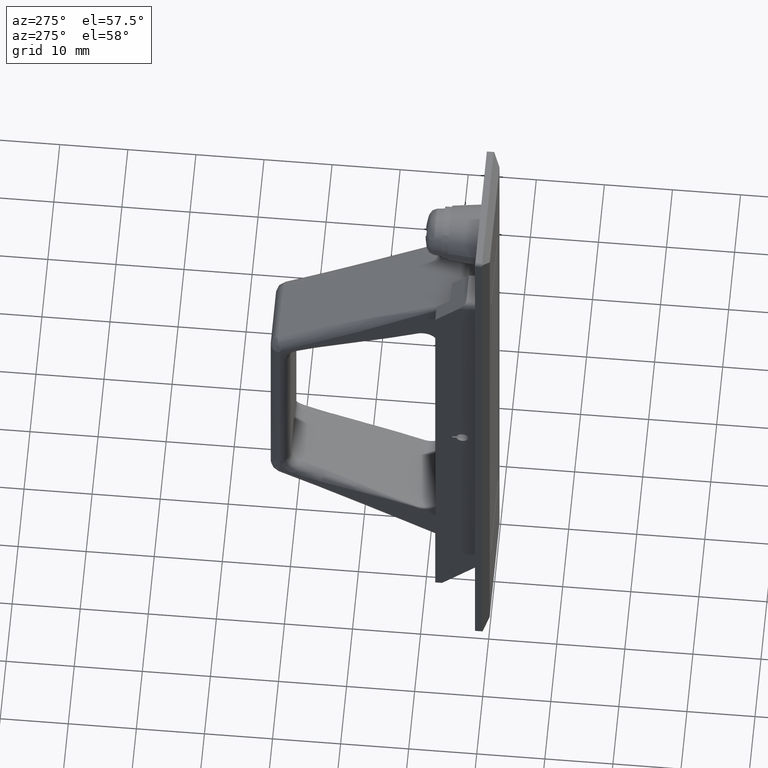
[diagram: clean part render]
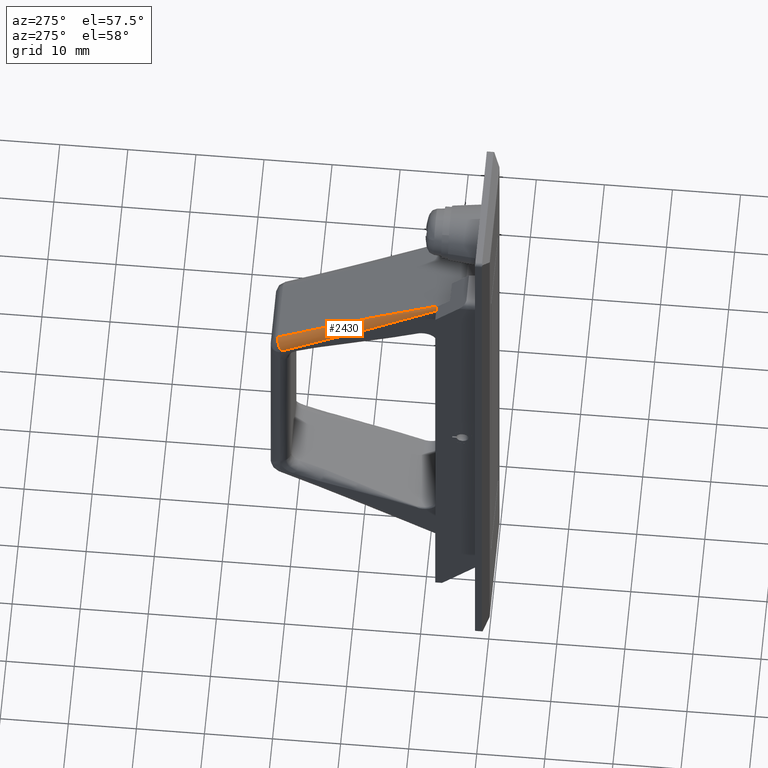
[diagram: same view with one face highlighted and labeled with its STEP entity id]
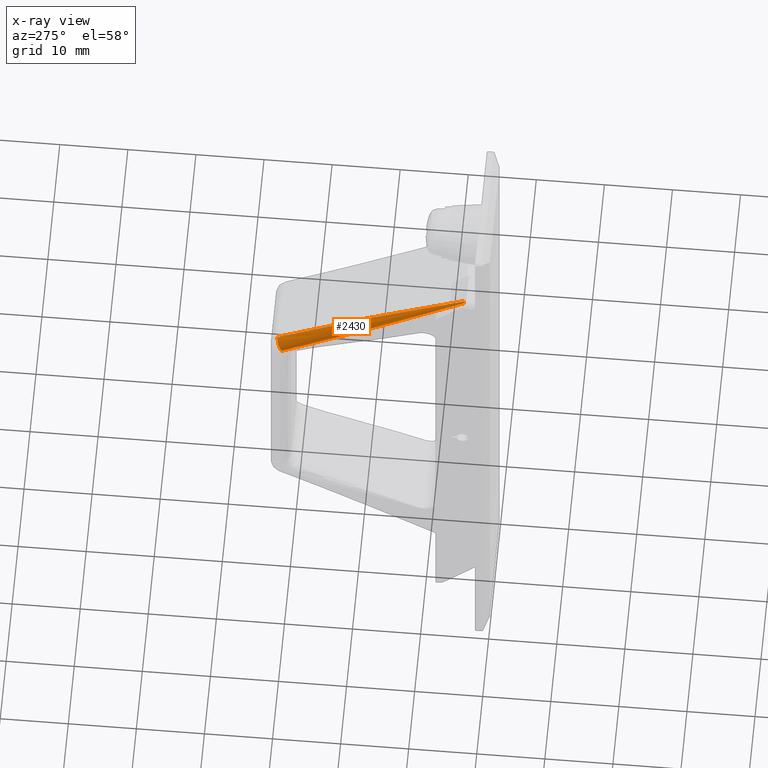
[diagram: x-ray of the same camera — body ghosted, the highlighted face saturated]
A machine part, auxiliary view. The second image highlights one B-rep face of the part: STEP entity #2430.
The next image is the same camera in x-ray: the body ghosted, the highlighted face saturated — about 0% of this face is hidden behind the body in this view.
In plain terms, the highlighted face is a freeform B-spline surface patch.
Its self-contained STEP definition (entity closure, byte-faithful):
#2320=CARTESIAN_POINT('',(3.999892216685925,5.700000000000000,33.099999999999987));
#2321=VERTEX_POINT('',#2320);
#2329=CARTESIAN_POINT('',(3.941353001997640,5.900000000000000,32.899999999999999));
#2330=VERTEX_POINT('',#2329);
#2331=CARTESIAN_POINT('',(3.999892216685925,5.700000000000000,33.099999999999987));
#2332=CARTESIAN_POINT('',(3.999892216685924,5.713490773104302,33.100000000000009));
#2333=CARTESIAN_POINT('',(3.999536028394608,5.726743597124908,33.098648934295220));
#2334=CARTESIAN_POINT('',(3.998101109465448,5.752792475884321,33.093363837295932));
#2335=CARTESIAN_POINT('',(3.997002770671782,5.765727559861022,33.089357411208212));
#2336=CARTESIAN_POINT('',(3.994123095563284,5.790185656747647,33.079005275402046));
#2337=CARTESIAN_POINT('',(3.992349372406475,5.801758284489901,33.072684881299459));
#2338=CARTESIAN_POINT('',(3.988123399412303,5.823605446063607,33.057786280757092));
#2339=CARTESIAN_POINT('',(3.985675806269829,5.833796369123377,33.049226048166027));
#2340=CARTESIAN_POINT('',(3.977616240422483,5.861150377467327,33.021285131856907));
#2341=CARTESIAN_POINT('',(3.971103625130782,5.875657450306290,32.999013681098468));
#2342=CARTESIAN_POINT('',(3.956967096704333,5.894971626988117,32.951432611856497));
#2343=CARTESIAN_POINT('',(3.949132307161606,5.900000000000000,32.925436616893862));
#2344=CARTESIAN_POINT('',(3.941353001997645,5.900000000000000,32.899999999999999));
#2345=B_SPLINE_CURVE_WITH_KNOTS('',3,(#2331,#2332,#2333,#2334,#2335,#2336,#2337,#2338,#2339,#2340,#2341,#2342,#2343,#2344),.UNSPECIFIED.,.F.,.U.,(4,2,2,2,2,2,4),(0.0,0.124999999999989,0.249999999999978,0.374999999999967,0.499999999999956,0.749999999999978,1.0),.UNSPECIFIED.);
#2346=EDGE_CURVE('',#2321,#2330,#2345,.T.);
#2367=CARTESIAN_POINT('',(3.742372921929194,5.899999999999999,33.029206813183563));
#2368=CARTESIAN_POINT('',(3.834989078879286,5.900000000000008,33.193155394976124));
#2369=CARTESIAN_POINT('',(3.834989078879286,5.711700000000004,33.193155394976117));
#2370=CARTESIAN_POINT('',(3.795422402921713,5.899999999999999,32.994759372431247));
#2371=CARTESIAN_POINT('',(3.889956791481498,5.900000000000008,33.162103596650752));
#2372=CARTESIAN_POINT('',(3.889956791481499,5.707800000000002,33.162103596650752));
#2373=CARTESIAN_POINT('',(3.848471883914231,5.899999999999999,32.960311931678952));
#2374=CARTESIAN_POINT('',(3.944924504083711,5.900000000000008,33.131051798325387));
#2375=CARTESIAN_POINT('',(3.944924504083712,5.703900000000002,33.131051798325373));
#2376=CARTESIAN_POINT('',(3.901521364906750,5.900000000000000,32.925864490926642));
#2377=CARTESIAN_POINT('',(3.999892216685924,5.900000000000008,33.100000000000001));
#2378=CARTESIAN_POINT('',(3.999892216685925,5.700000000000000,33.099999999999987));
#2379=CARTESIAN_POINT('',(12.743101530326360,5.900000000000000,27.184624365542749));
#2380=CARTESIAN_POINT('',(13.161177650387840,5.900000000000008,27.924700279104528));
#2381=CARTESIAN_POINT('',(13.161177650387840,5.050000000000000,27.924700279104549));
#2382=CARTESIAN_POINT('',(21.584681695745999,5.900000000000000,21.443384240158899));
#2383=CARTESIAN_POINT('',(22.322463084089755,5.900000000000008,22.749400558209103));
#2384=CARTESIAN_POINT('',(22.322463084089801,4.400000000000000,22.749400558209150));
#2385=CARTESIAN_POINT('',(30.745967129447951,5.900000000000000,16.268084519263450));
#2386=CARTESIAN_POINT('',(31.483748517791714,5.900000000000008,17.574100837313690));
#2387=CARTESIAN_POINT('',(31.483748517791700,4.400000000000000,17.574100837313701));
#2395=(BOUNDED_SURFACE()B_SPLINE_SURFACE(2,3,((#2367,#2370,#2373,#2376,#2379,#2382,#2385),(#2368,#2371,#2374,#2377,#2380,#2383,#2386),(#2369,#2372,#2375,#2378,#2381,#2384,#2387)),.UNSPECIFIED.,.F.,.F.,.U.)B_SPLINE_SURFACE_WITH_KNOTS((3,3),(4,3,4),(0.0,2.485281374238559),(0.0,0.189757377910942,31.815987029733972),.UNSPECIFIED.)GEOMETRIC_REPRESENTATION_ITEM()RATIONAL_B_SPLINE_SURFACE(((1.0,1.0,1.0,1.0,1.0,1.0,1.0),(0.707106781186548,0.707106781186548,0.707106781186548,0.707106781186548,0.707106781186548,0.707106781186548,0.707106781186548),(1.0,1.0,1.0,1.0,1.0,1.0,1.0)))REPRESENTATION_ITEM('')SURFACE());
#2396=CARTESIAN_POINT('',(31.483748517791700,4.400000000000071,17.574100837313701));
#2397=VERTEX_POINT('',#2396);
#2398=CARTESIAN_POINT('',(30.745967129447951,5.900000000000000,16.268084519263450));
#2399=VERTEX_POINT('',#2398);
#2400=CARTESIAN_POINT('',(31.483748517791700,4.400000000000071,17.574100837313701));
#2401=CARTESIAN_POINT('',(31.483748517791831,5.900000000000003,17.574100837313921));
#2402=CARTESIAN_POINT('',(30.745967129447951,5.900000000000000,16.268084519263450));
#2410=(BOUNDED_CURVE()B_SPLINE_CURVE(2,(#2400,#2401,#2402),.UNSPECIFIED.,.F.,.U.)CURVE()GEOMETRIC_REPRESENTATION_ITEM()QUASI_UNIFORM_CURVE()RATIONAL_B_SPLINE_CURVE((1.0,0.707106781186485,1.0))REPRESENTATION_ITEM(''));
#2411=EDGE_CURVE('',#2397,#2399,#2410,.T.);
#2412=ORIENTED_EDGE('',*,*,#2411,.T.);
#2413=CARTESIAN_POINT('',(3.941353001997634,5.900000000000002,32.900000000000013));
#2414=CARTESIAN_POINT('',(12.769656675279620,5.900000000000001,27.167382646531539));
#2415=CARTESIAN_POINT('',(21.598439002318500,5.900000000000000,21.435612603156631));
#2416=CARTESIAN_POINT('',(30.745967129447951,5.900000000000000,16.268084519263450));
#2417=B_SPLINE_CURVE_WITH_KNOTS('',3,(#2413,#2414,#2415,#2416),.UNSPECIFIED.,.F.,.U.,(4,4),(0.094385243409929,1.0),.UNSPECIFIED.);
#2418=EDGE_CURVE('',#2330,#2399,#2417,.T.);
#2419=ORIENTED_EDGE('',*,*,#2418,.F.);
#2420=ORIENTED_EDGE('',*,*,#2346,.F.);
#2421=CARTESIAN_POINT('',(31.483748517791700,4.400000000000071,17.574100837313701));
#2422=CARTESIAN_POINT('',(22.322463084089801,4.400000000000000,22.749400558209150));
#2423=CARTESIAN_POINT('',(13.161177650387840,5.050000000000000,27.924700279104549));
#2424=CARTESIAN_POINT('',(3.999892216685925,5.700000000000000,33.099999999999987));
#2425=B_SPLINE_CURVE_WITH_KNOTS('',3,(#2421,#2422,#2423,#2424),.UNSPECIFIED.,.F.,.U.,(4,4),(0.093023255813953,1.000000000000000),.UNSPECIFIED.);
#2426=EDGE_CURVE('',#2397,#2321,#2425,.T.);
#2427=ORIENTED_EDGE('',*,*,#2426,.F.);
#2428=EDGE_LOOP('',(#2412,#2419,#2420,#2427));
#2429=FACE_OUTER_BOUND('',#2428,.T.);
#2430=ADVANCED_FACE('',(#2429),#2395,.T.);